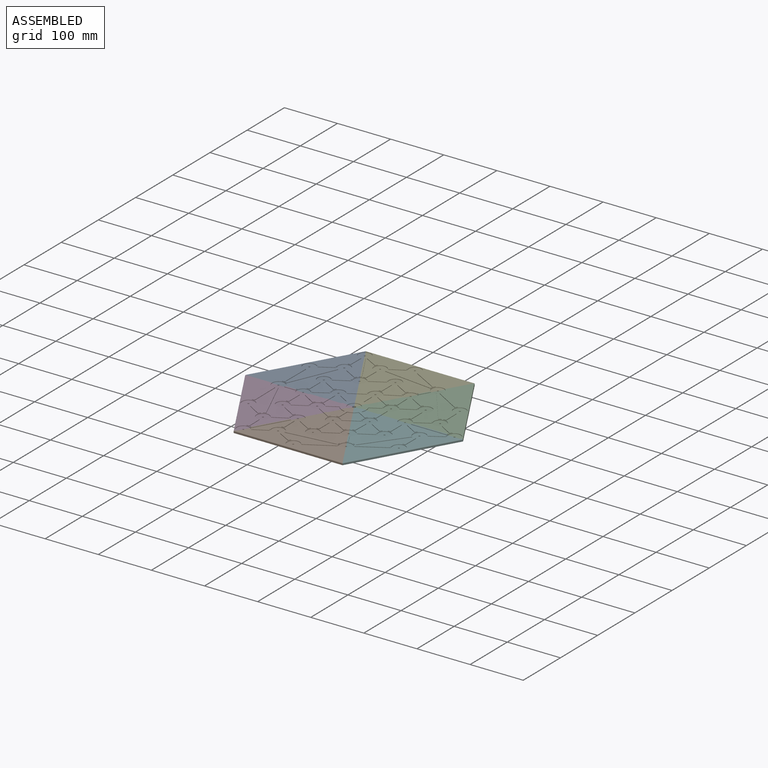
[diagram: assembled view]
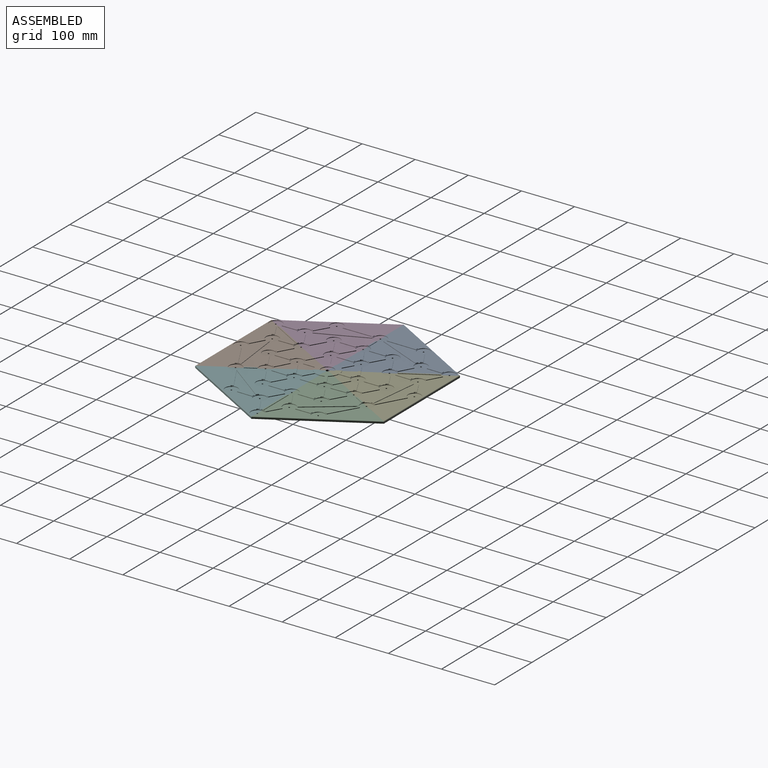
[diagram: assembled view, second angle]
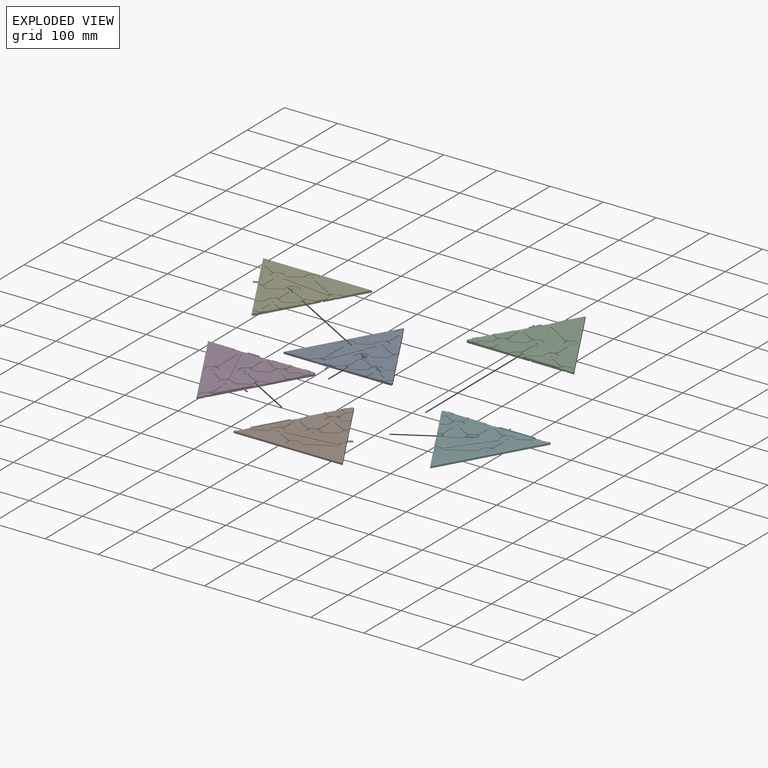
[diagram: exploded view]
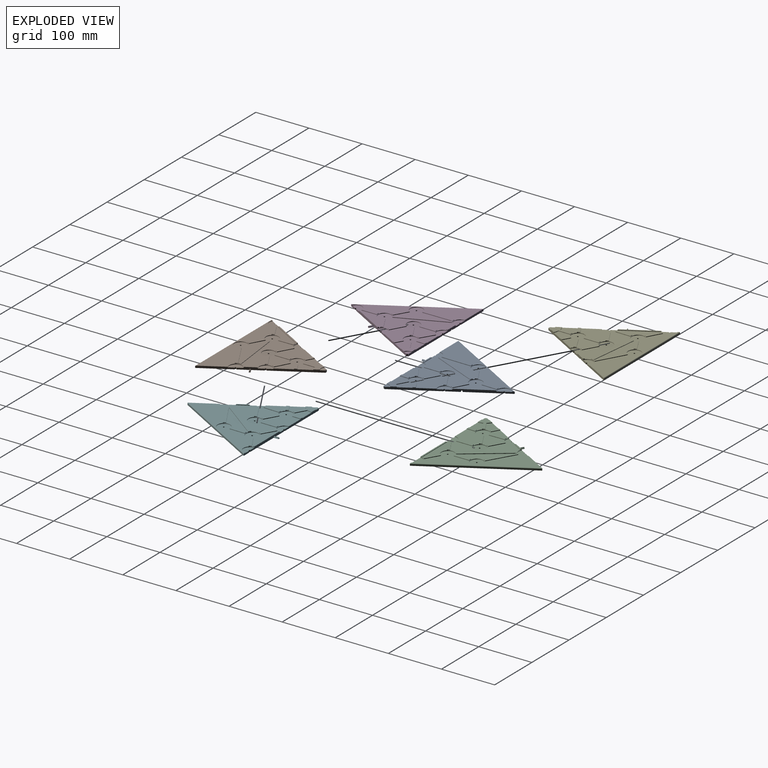
[diagram: exploded view, second angle]
ASSEMBLY  parts=6 mates=5
PART A: 110 faces, bbox 205x174.9x4.8 mm
  f0: plane 77.87x44.96mm, normal (-0.87,0.5,0), area 386.8mm2, adj f6,f8,f43,f45,f46,f80,f81,f82
  f1: plane 79.17x45.71mm, normal (0.87,0.5,0), area 361mm2, adj f6,f8,f13,f15,f16,f21,f22,f76
  f2: plane 79.17x45.71mm, normal (-0.87,0.5,0), area 361mm2, adj f6,f8,f9,f11,f12,f17,f22,f80
  f3: plane 52.94x30.56mm, normal (0.87,0.5,0), area 228.7mm2, adj f6,f7,f8,f78,f79,f98,f103
  f4: plane 37.64x21.73mm, normal (0.87,0.5,0), area 164.8mm2, adj f6,f8,f62,f64,f65,f76,f77,f78
  f5: plane 12.7x7.33mm, normal (-0.87,0.5,0), area 47.5mm2, adj f6,f7,f8,f82,f83,f99,f103
  f6: plane 203.85x157.05mm, normal (0,0,1), area 12781.2mm2, adj f0,f1,f2,f3,f4,f5,f9,f10
  f7: plane 205x2.9mm, normal (0,-1,0), area 594.5mm2, adj f3,f5,f8,f103
  f8: plane 205x174.94mm, normal (0,0,-1), area 18143.7mm2, adj f0,f1,f2,f3,f4,f5,f7,f92
  f9: plane 13.68x7.9mm, normal (-0.5,-0.87,0), area 14.2mm2, adj f2,f6,f10,f12
  f10: cylinder r=13mm len=4.33mm, axis (0,0,-1), area 4.5mm2, adj f6,f9,f11,f12
  f11: plane 13.68x7.9mm, normal (0.5,0.87,0), area 14.2mm2, adj f2,f6,f10,f12
  f12: plane 16.18x12.23mm, normal (0,0,1), area 78.2mm2, adj f2,f9,f10,f11
  f13: plane 13.68x7.9mm, normal (-0.5,0.87,0), area 14.2mm2, adj f1,f6,f14,f16
  f14: cylinder r=13mm len=4.33mm, axis (0,0,-1), area 4.5mm2, adj f6,f13,f15,f16
  f15: plane 13.68x7.9mm, normal (0.5,-0.87,0), area 14.2mm2, adj f1,f6,f14,f16
  f16: plane 16.18x12.23mm, normal (0,0,1), area 78.2mm2, adj f1,f13,f14,f15
  f17: cylinder r=22.5mm len=8.75mm, axis (0,0,-1), area 8.3mm2, adj f2,f6,f18,f22
  f18: plane 21.99x0.9mm, normal (-1,0,0), area 19.8mm2, adj f6,f17,f19,f22
  f19: cylinder r=13mm len=5mm, axis (0,0,-1), area 4.5mm2, adj f6,f18,f20,f22
  f20: plane 21.99x0.9mm, normal (1,0,0), area 19.8mm2, adj f6,f19,f21,f22
  f21: cylinder r=22.5mm len=8.75mm, axis (0,0,-1), area 8.3mm2, adj f1,f6,f20,f22
  f22: plane 33.96x22.5mm, normal (0,0,1), area 298.4mm2, adj f1,f2,f17,f18,f19,f20,f21,f100
  f23: cylinder r=13mm len=5mm, axis (0,0,-1), area 4.5mm2, adj f6,f24,f26,f27
  f24: plane 28.13x0.9mm, normal (-1,0,0), area 25.3mm2, adj f6,f23,f25,f27
  f25: cylinder r=13mm len=5mm, axis (0,0,-1), area 4.5mm2, adj f6,f24,f26,f27
  f26: plane 28.13x0.9mm, normal (1,0,0), area 25.3mm2, adj f6,f23,f25,f27
  f27: plane 28.13x5mm, normal (0,0,1), area 139mm2, adj f23,f24,f25,f26
  f28: plane 25.86x14.93mm, normal (0.5,0.87,0), area 26.9mm2, adj f6,f29,f31,f32
  f29: cylinder r=13mm len=4.33mm, axis (0,0,-1), area 4.5mm2, adj f6,f28,f30,f32
  f30: plane 25.86x14.93mm, normal (-0.5,-0.87,0), area 26.9mm2, adj f6,f29,f31,f32
  f31: cylinder r=13mm len=4.33mm, axis (0,0,-1), area 4.5mm2, adj f6,f28,f30,f32
  f32: plane 28.36x19.26mm, normal (0,0,1), area 147.7mm2, adj f28,f29,f30,f31
  f33: cylinder r=13mm len=4.33mm, axis (0,0,-1), area 4.5mm2, adj f6,f34,f36,f37
  f34: plane 25.86x14.93mm, normal (0.5,-0.87,0), area 26.9mm2, adj f6,f33,f35,f37
  f35: cylinder r=13mm len=4.33mm, axis (0,0,-1), area 4.5mm2, adj f6,f34,f36,f37
  f36: plane 25.86x14.93mm, normal (-0.5,0.87,0), area 26.9mm2, adj f6,f33,f35,f37
  f37: plane 28.36x19.26mm, normal (0,0,1), area 147.7mm2, adj f33,f34,f35,f36
  f38: cylinder r=13mm len=5mm, axis (0,0,-1), area 4.5mm2, adj f6,f39,f41,f42
  f39: plane 28.57x0.9mm, normal (-1,-0.01,0), area 25.7mm2, adj f6,f38,f40,f42
  f40: cylinder r=13mm len=5mm, axis (0,0,-1), area 4.5mm2, adj f6,f39,f41,f42
  f41: plane 28.57x0.9mm, normal (1,0.01,0), area 25.7mm2, adj f6,f38,f40,f42
  f42: plane 28.64x5.4mm, normal (0,0,1), area 141.2mm2, adj f38,f39,f40,f41
  f43: cylinder r=13mm len=2.04mm, axis (0,0,-1), area 2.3mm2, adj f0,f6,f44,f46
  f44: plane 58.37x33.7mm, normal (0.87,-0.5,0), area 60.7mm2, adj f6,f43,f45,f46
  f45: cylinder r=13mm len=2.29mm, axis (0,0,-1), area 2.3mm2, adj f0,f6,f44,f46
  f46: plane 59.41x35.75mm, normal (0,0,1), area 167.7mm2, adj f0,f43,f44,f45
  f47: plane 24.94x13.94mm, normal (-0.49,0.87,0), area 25.7mm2, adj f6,f48,f50,f51
  f48: cylinder r=13mm len=4.36mm, axis (0,0,-1), area 4.5mm2, adj f6,f47,f49,f51
  f49: plane 24.94x13.94mm, normal (0.49,-0.87,0), area 25.7mm2, adj f6,f48,f50,f51
  f50: cylinder r=13mm len=4.36mm, axis (0,0,-1), area 4.5mm2, adj f6,f47,f49,f51
  f51: plane 27.38x18.3mm, normal (0,0,1), area 141.2mm2, adj f47,f48,f49,f50
  f52: cylinder r=13mm len=4.36mm, axis (0,0,-1), area 4.5mm2, adj f6,f53,f55,f56
  f53: plane 24.94x13.94mm, normal (-0.49,-0.87,0), area 25.7mm2, adj f6,f52,f54,f56
  f54: cylinder r=13mm len=4.36mm, axis (0,0,-1), area 4.5mm2, adj f6,f53,f55,f56
  f55: plane 24.94x13.94mm, normal (0.49,0.87,0), area 25.7mm2, adj f6,f52,f54,f56
  f56: plane 27.38x18.3mm, normal (0,0,1), area 141.2mm2, adj f52,f53,f54,f55
  f57: cylinder r=13mm len=4.35mm, axis (0,0,-1), area 4.5mm2, adj f6,f58,f60,f61
  f58: plane 48.98x27.68mm, normal (-0.49,0.87,0), area 50.6mm2, adj f6,f57,f59,f61
  f59: cylinder r=13mm len=4.35mm, axis (0,0,-1), area 4.5mm2, adj f6,f58,f60,f61
  f60: plane 48.98x27.68mm, normal (0.49,-0.87,0), area 50.6mm2, adj f6,f57,f59,f61
  f61: plane 51.44x32.03mm, normal (0,0,1), area 279.7mm2, adj f57,f58,f59,f60
  f62: cylinder r=13mm len=2.29mm, axis (0,0,-1), area 2.3mm2, adj f4,f6,f63,f65
  f63: plane 18.14x10.47mm, normal (-0.87,-0.5,0), area 18.8mm2, adj f6,f62,f64,f65
  f64: cylinder r=13mm len=2.04mm, axis (0,0,-1), area 2.3mm2, adj f4,f6,f63,f65
  f65: plane 19.18x12.52mm, normal (0,0,1), area 51.5mm2, adj f4,f62,f63,f64
  f66: plane 93.05x10.88mm, normal (-0.12,0.99,0), area 84.3mm2, adj f6,f67,f69,f70
  f67: cylinder r=13mm len=4.97mm, axis (0,0,-1), area 4.5mm2, adj f6,f66,f68,f70
  f68: plane 93.05x10.88mm, normal (0.12,-0.99,0), area 84.3mm2, adj f6,f67,f69,f70
  f69: cylinder r=13mm len=4.97mm, axis (0,0,-1), area 4.5mm2, adj f6,f66,f68,f70
  f70: plane 93.64x15.85mm, normal (0,0,1), area 466.8mm2, adj f66,f67,f68,f69
  f71: plane 25.52x13.81mm, normal (0.48,0.88,0), area 26.1mm2, adj f6,f72,f74,f75
  f72: cylinder r=13mm len=4.4mm, axis (0,0,-1), area 4.5mm2, adj f6,f71,f73,f75
  f73: plane 25.52x13.81mm, normal (-0.48,-0.88,0), area 26.1mm2, adj f6,f72,f74,f75
  f74: cylinder r=13mm len=4.4mm, axis (0,0,-1), area 4.5mm2, adj f6,f71,f73,f75
  f75: plane 27.9x18.21mm, normal (0,0,1), area 143.5mm2, adj f71,f72,f73,f74
  f76: cylinder r=12mm len=22.39mm, axis (0,0,1), area 33.9mm2, adj f1,f4,f6,f77
  f77: plane 22.39x18mm, normal (0,0,1), area 222.7mm2, adj f1,f4,f76,f97
  f78: cylinder r=12mm len=22.39mm, axis (0,0,1), area 33.9mm2, adj f3,f4,f6,f79
  f79: plane 22.39x18mm, normal (0,0,1), area 222.7mm2, adj f3,f4,f78,f98
  f80: cylinder r=12mm len=22.39mm, axis (0,0,1), area 33.9mm2, adj f0,f2,f6,f81
  f81: plane 22.39x18mm, normal (0,0,1), area 222.7mm2, adj f0,f2,f80,f96
  f82: cylinder r=12mm len=22.39mm, axis (0,0,1), area 33.9mm2, adj f0,f5,f6,f83
  f83: plane 22.39x18mm, normal (0,0,1), area 222.7mm2, adj f0,f5,f82,f99
  f84: cylinder r=12mm len=24mm, axis (0,0,1), area 67.9mm2, adj f6,f85
  f85: plane 24x24mm, normal (0,0,1), area 445.3mm2, adj f84,f95
  f86: cylinder r=12mm len=24mm, axis (0,0,1), area 67.9mm2, adj f6,f87
  f87: plane 24x24mm, normal (0,0,1), area 445.3mm2, adj f86,f94
  f88: cylinder r=12mm len=24mm, axis (0,0,1), area 67.9mm2, adj f6,f89
  f89: plane 24x24mm, normal (0,0,1), area 445.3mm2, adj f88,f93
  f90: cylinder r=12mm len=24mm, axis (0,0,1), area 67.9mm2, adj f6,f91
  f91: plane 24x24mm, normal (0,0,1), area 445.3mm2, adj f90,f92
  f92: cylinder r=1.5mm len=3mm, axis (0,0,1), area 28.3mm2, adj f8,f91
  f93: cylinder r=1.5mm len=3mm, axis (0,0,1), area 28.3mm2, adj f8,f89
  f94: cylinder r=1.5mm len=3mm, axis (0,0,1), area 28.3mm2, adj f8,f87
  f95: cylinder r=1.5mm len=3mm, axis (0,0,1), area 28.3mm2, adj f8,f85
  f96: cylinder r=1.5mm len=3mm, axis (0,0,1), area 14.1mm2, adj f0,f2,f8,f81
  f97: cylinder r=1.5mm len=3mm, axis (0,0,1), area 14.1mm2, adj f1,f4,f8,f77
  f98: cylinder r=1.5mm len=3mm, axis (0,0,1), area 14.1mm2, adj f3,f4,f8,f79
  f99: cylinder r=1.5mm len=3mm, axis (0,0,1), area 14.1mm2, adj f0,f5,f8,f83
  f100: cylinder r=12mm len=12mm, axis (0,0,1), area 11.3mm2, adj f1,f2,f22,f101
  f101: plane 12x9.4mm, normal (0,0,1), area 70.7mm2, adj f1,f2,f100,f102
  f102: cylinder r=3mm len=3.9mm, axis (0,0,1), area 12.3mm2, adj f1,f2,f8,f101
  f103: cylinder r=1mm len=205mm, axis (-1,0,0), area 321.4mm2, adj f3,f5,f6,f7
  f104: plane 8.57x5.85mm, normal (-0.43,0.75,0.5), area 28.1mm2, adj f4,f8,f105,f106
  f105: plane 8.57x5.85mm, normal (0.43,-0.75,0.5), area 28.1mm2, adj f4,f8,f104,f106
  f106: plane 2.7x2.7mm, normal (0.87,0.5,0), area 4.2mm2, adj f8,f104,f105
  f107: plane 9.53x6.5mm, normal (0.43,0.75,-0.5), area 34.6mm2, adj f0,f8,f108,f109
  f108: plane 9.53x6.5mm, normal (-0.43,-0.75,-0.5), area 34.6mm2, adj f0,f8,f107,f109
  f109: plane 3x3mm, normal (-0.87,0.5,0), area 5.2mm2, adj f8,f107,f108
PART B: same geometry as A
PART C: same geometry as A
PART D: 110 faces, bbox 205x174.9x4.8 mm
  f0: plane 77.87x44.96mm, normal (0.87,0.5,0), area 387.8mm2, adj f6,f8,f43,f45,f46,f80,f81,f82
  f1: plane 79.17x45.71mm, normal (-0.87,0.5,0), area 361mm2, adj f6,f8,f13,f15,f16,f21,f22,f76
  f2: plane 79.17x45.71mm, normal (0.87,0.5,0), area 361mm2, adj f6,f8,f9,f11,f12,f17,f22,f80
  f3: plane 52.94x30.56mm, normal (-0.87,0.5,0), area 228.7mm2, adj f6,f7,f8,f78,f79,f98,f103
  f4: plane 37.64x21.73mm, normal (-0.87,0.5,0), area 163.8mm2, adj f6,f8,f62,f64,f65,f76,f77,f78
  f5: plane 12.7x7.33mm, normal (0.87,0.5,0), area 47.5mm2, adj f6,f7,f8,f82,f83,f99,f103
  f6: plane 203.85x157.05mm, normal (0,0,1), area 12781.2mm2, adj f0,f1,f2,f3,f4,f5,f9,f10
  f7: plane 205x2.9mm, normal (0,-1,0), area 594.5mm2, adj f3,f5,f8,f103
  f8: plane 205x174.94mm, normal (0,0,-1), area 18143.7mm2, adj f0,f1,f2,f3,f4,f5,f7,f92
  f9: plane 13.68x7.9mm, normal (0.5,-0.87,0), area 14.2mm2, adj f2,f6,f10,f12
  f10: cylinder r=13mm len=4.33mm, axis (0,0,-1), area 4.5mm2, adj f6,f9,f11,f12
  f11: plane 13.68x7.9mm, normal (-0.5,0.87,0), area 14.2mm2, adj f2,f6,f10,f12
  f12: plane 16.18x12.23mm, normal (0,0,1), area 78.2mm2, adj f2,f9,f10,f11
  f13: plane 13.68x7.9mm, normal (0.5,0.87,0), area 14.2mm2, adj f1,f6,f14,f16
  f14: cylinder r=13mm len=4.33mm, axis (0,0,-1), area 4.5mm2, adj f6,f13,f15,f16
  f15: plane 13.68x7.9mm, normal (-0.5,-0.87,0), area 14.2mm2, adj f1,f6,f14,f16
  f16: plane 16.18x12.23mm, normal (0,0,1), area 78.2mm2, adj f1,f13,f14,f15
  f17: cylinder r=22.5mm len=8.75mm, axis (0,0,-1), area 8.3mm2, adj f2,f6,f18,f22
  f18: plane 21.99x0.9mm, normal (1,0,0), area 19.8mm2, adj f6,f17,f19,f22
  f19: cylinder r=13mm len=5mm, axis (0,0,-1), area 4.5mm2, adj f6,f18,f20,f22
  f20: plane 21.99x0.9mm, normal (-1,0,0), area 19.8mm2, adj f6,f19,f21,f22
  f21: cylinder r=22.5mm len=8.75mm, axis (0,0,-1), area 8.3mm2, adj f1,f6,f20,f22
  f22: plane 33.96x22.5mm, normal (0,0,1), area 298.4mm2, adj f1,f2,f17,f18,f19,f20,f21,f100
  f23: cylinder r=13mm len=5mm, axis (0,0,-1), area 4.5mm2, adj f6,f24,f26,f27
  f24: plane 28.13x0.9mm, normal (1,0,0), area 25.3mm2, adj f6,f23,f25,f27
  f25: cylinder r=13mm len=5mm, axis (0,0,-1), area 4.5mm2, adj f6,f24,f26,f27
  f26: plane 28.13x0.9mm, normal (-1,0,0), area 25.3mm2, adj f6,f23,f25,f27
  f27: plane 28.13x5mm, normal (0,0,1), area 139mm2, adj f23,f24,f25,f26
  f28: plane 25.86x14.93mm, normal (-0.5,0.87,0), area 26.9mm2, adj f6,f29,f31,f32
  f29: cylinder r=13mm len=4.33mm, axis (0,0,-1), area 4.5mm2, adj f6,f28,f30,f32
  f30: plane 25.86x14.93mm, normal (0.5,-0.87,0), area 26.9mm2, adj f6,f29,f31,f32
  f31: cylinder r=13mm len=4.33mm, axis (0,0,-1), area 4.5mm2, adj f6,f28,f30,f32
  f32: plane 28.36x19.26mm, normal (0,0,1), area 147.7mm2, adj f28,f29,f30,f31
  f33: cylinder r=13mm len=4.33mm, axis (0,0,-1), area 4.5mm2, adj f6,f34,f36,f37
  f34: plane 25.86x14.93mm, normal (-0.5,-0.87,0), area 26.9mm2, adj f6,f33,f35,f37
  f35: cylinder r=13mm len=4.33mm, axis (0,0,-1), area 4.5mm2, adj f6,f34,f36,f37
  f36: plane 25.86x14.93mm, normal (0.5,0.87,0), area 26.9mm2, adj f6,f33,f35,f37
  f37: plane 28.36x19.26mm, normal (0,0,1), area 147.7mm2, adj f33,f34,f35,f36
  f38: cylinder r=13mm len=5mm, axis (0,0,-1), area 4.5mm2, adj f6,f39,f41,f42
  f39: plane 28.57x0.9mm, normal (1,-0.01,0), area 25.7mm2, adj f6,f38,f40,f42
  f40: cylinder r=13mm len=5mm, axis (0,0,-1), area 4.5mm2, adj f6,f39,f41,f42
  f41: plane 28.57x0.9mm, normal (-1,0.01,0), area 25.7mm2, adj f6,f38,f40,f42
  f42: plane 28.64x5.4mm, normal (0,0,1), area 141.2mm2, adj f38,f39,f40,f41
  f43: cylinder r=13mm len=2.04mm, axis (0,0,-1), area 2.3mm2, adj f0,f6,f44,f46
  f44: plane 58.37x33.7mm, normal (-0.87,-0.5,0), area 60.7mm2, adj f6,f43,f45,f46
  f45: cylinder r=13mm len=2.29mm, axis (0,0,-1), area 2.3mm2, adj f0,f6,f44,f46
  f46: plane 59.41x35.75mm, normal (0,0,1), area 167.7mm2, adj f0,f43,f44,f45
  f47: plane 24.94x13.94mm, normal (0.49,0.87,0), area 25.7mm2, adj f6,f48,f50,f51
  f48: cylinder r=13mm len=4.36mm, axis (0,0,-1), area 4.5mm2, adj f6,f47,f49,f51
  f49: plane 24.94x13.94mm, normal (-0.49,-0.87,0), area 25.7mm2, adj f6,f48,f50,f51
  f50: cylinder r=13mm len=4.36mm, axis (0,0,-1), area 4.5mm2, adj f6,f47,f49,f51
  f51: plane 27.38x18.3mm, normal (0,0,1), area 141.2mm2, adj f47,f48,f49,f50
  f52: cylinder r=13mm len=4.36mm, axis (0,0,-1), area 4.5mm2, adj f6,f53,f55,f56
  f53: plane 24.94x13.94mm, normal (0.49,-0.87,0), area 25.7mm2, adj f6,f52,f54,f56
  f54: cylinder r=13mm len=4.36mm, axis (0,0,-1), area 4.5mm2, adj f6,f53,f55,f56
  f55: plane 24.94x13.94mm, normal (-0.49,0.87,0), area 25.7mm2, adj f6,f52,f54,f56
  f56: plane 27.38x18.3mm, normal (0,0,1), area 141.2mm2, adj f52,f53,f54,f55
  f57: cylinder r=13mm len=4.35mm, axis (0,0,-1), area 4.5mm2, adj f6,f58,f60,f61
  f58: plane 48.98x27.68mm, normal (0.49,0.87,0), area 50.6mm2, adj f6,f57,f59,f61
  f59: cylinder r=13mm len=4.35mm, axis (0,0,-1), area 4.5mm2, adj f6,f58,f60,f61
  f60: plane 48.98x27.68mm, normal (-0.49,-0.87,0), area 50.6mm2, adj f6,f57,f59,f61
  f61: plane 51.44x32.03mm, normal (0,0,1), area 279.7mm2, adj f57,f58,f59,f60
  f62: cylinder r=13mm len=2.29mm, axis (0,0,-1), area 2.3mm2, adj f4,f6,f63,f65
  f63: plane 18.14x10.47mm, normal (0.87,-0.5,0), area 18.8mm2, adj f6,f62,f64,f65
  f64: cylinder r=13mm len=2.04mm, axis (0,0,-1), area 2.3mm2, adj f4,f6,f63,f65
  f65: plane 19.18x12.52mm, normal (0,0,1), area 51.5mm2, adj f4,f62,f63,f64
  f66: plane 93.05x10.88mm, normal (0.12,0.99,0), area 84.3mm2, adj f6,f67,f69,f70
  f67: cylinder r=13mm len=4.97mm, axis (0,0,-1), area 4.5mm2, adj f6,f66,f68,f70
  f68: plane 93.05x10.88mm, normal (-0.12,-0.99,0), area 84.3mm2, adj f6,f67,f69,f70
  f69: cylinder r=13mm len=4.97mm, axis (0,0,-1), area 4.5mm2, adj f6,f66,f68,f70
  f70: plane 93.64x15.85mm, normal (0,0,1), area 466.8mm2, adj f66,f67,f68,f69
  f71: plane 25.52x13.81mm, normal (-0.48,0.88,0), area 26.1mm2, adj f6,f72,f74,f75
  f72: cylinder r=13mm len=4.4mm, axis (0,0,-1), area 4.5mm2, adj f6,f71,f73,f75
  f73: plane 25.52x13.81mm, normal (0.48,-0.88,0), area 26.1mm2, adj f6,f72,f74,f75
  f74: cylinder r=13mm len=4.4mm, axis (0,0,-1), area 4.5mm2, adj f6,f71,f73,f75
  f75: plane 27.9x18.21mm, normal (0,0,1), area 143.5mm2, adj f71,f72,f73,f74
  f76: cylinder r=12mm len=22.39mm, axis (0,0,1), area 33.9mm2, adj f1,f4,f6,f77
  f77: plane 22.39x18mm, normal (0,0,1), area 222.7mm2, adj f1,f4,f76,f97
  f78: cylinder r=12mm len=22.39mm, axis (0,0,1), area 33.9mm2, adj f3,f4,f6,f79
  f79: plane 22.39x18mm, normal (0,0,1), area 222.7mm2, adj f3,f4,f78,f98
  f80: cylinder r=12mm len=22.39mm, axis (0,0,1), area 33.9mm2, adj f0,f2,f6,f81
  f81: plane 22.39x18mm, normal (0,0,1), area 222.7mm2, adj f0,f2,f80,f96
  f82: cylinder r=12mm len=22.39mm, axis (0,0,1), area 33.9mm2, adj f0,f5,f6,f83
  f83: plane 22.39x18mm, normal (0,0,1), area 222.7mm2, adj f0,f5,f82,f99
  f84: cylinder r=12mm len=24mm, axis (0,0,1), area 67.9mm2, adj f6,f85
  f85: plane 24x24mm, normal (0,0,1), area 445.3mm2, adj f84,f95
  f86: cylinder r=12mm len=24mm, axis (0,0,1), area 67.9mm2, adj f6,f87
  f87: plane 24x24mm, normal (0,0,1), area 445.3mm2, adj f86,f94
  f88: cylinder r=12mm len=24mm, axis (0,0,1), area 67.9mm2, adj f6,f89
  f89: plane 24x24mm, normal (0,0,1), area 445.3mm2, adj f88,f93
  f90: cylinder r=12mm len=24mm, axis (0,0,1), area 67.9mm2, adj f6,f91
  f91: plane 24x24mm, normal (0,0,1), area 445.3mm2, adj f90,f92
  f92: cylinder r=1.5mm len=3mm, axis (0,0,1), area 28.3mm2, adj f8,f91
  f93: cylinder r=1.5mm len=3mm, axis (0,0,1), area 28.3mm2, adj f8,f89
  f94: cylinder r=1.5mm len=3mm, axis (0,0,1), area 28.3mm2, adj f8,f87
  f95: cylinder r=1.5mm len=3mm, axis (0,0,1), area 28.3mm2, adj f8,f85
  f96: cylinder r=1.5mm len=3mm, axis (0,0,1), area 14.1mm2, adj f0,f2,f8,f81
  f97: cylinder r=1.5mm len=3mm, axis (0,0,1), area 14.1mm2, adj f1,f4,f8,f77
  f98: cylinder r=1.5mm len=3mm, axis (0,0,1), area 14.1mm2, adj f3,f4,f8,f79
  f99: cylinder r=1.5mm len=3mm, axis (0,0,1), area 14.1mm2, adj f0,f5,f8,f83
  f100: cylinder r=12mm len=12mm, axis (0,0,1), area 11.3mm2, adj f1,f2,f22,f101
  f101: plane 12x9.4mm, normal (0,0,1), area 70.7mm2, adj f1,f2,f100,f102
  f102: cylinder r=3mm len=3.9mm, axis (0,0,1), area 12.3mm2, adj f1,f2,f8,f101
  f103: cylinder r=1mm len=205mm, axis (1,0,0), area 321.4mm2, adj f3,f5,f6,f7
  f104: plane 8.57x5.85mm, normal (0.43,-0.75,0.5), area 28.1mm2, adj f0,f8,f105,f106
  f105: plane 8.57x5.85mm, normal (-0.43,0.75,0.5), area 28.1mm2, adj f0,f8,f104,f106
  f106: plane 2.7x2.7mm, normal (0.87,0.5,0), area 4.2mm2, adj f8,f104,f105
  f107: plane 9.53x6.5mm, normal (-0.43,-0.75,-0.5), area 34.6mm2, adj f4,f8,f108,f109
  f108: plane 9.53x6.5mm, normal (0.43,0.75,-0.5), area 34.6mm2, adj f4,f8,f107,f109
  f109: plane 3x3mm, normal (-0.87,0.5,0), area 5.2mm2, adj f8,f107,f108
PART E: same geometry as D
PART F: same geometry as D
PLACE A rot(axis=(0,0,-1),120deg) t=(-270.62,-54.01,0.05)mm
PLACE B t=(-270.59,-53.97,0.05)mm
PLACE C rot(axis=(0,0,1),120deg) t=(-270.64,-53.97,0.05)mm
PLACE D rot(axis=(0,0,-1),60deg) t=(-270.62,-54.01,0.05)mm
PLACE E rot(axis=(0,0,-1),180deg) t=(-270.64,-53.97,0.05)mm
PLACE F rot(axis=(0,0,1),60deg) t=(-270.59,-53.97,0.05)mm
MATE fastened D.f0 <-> B.f0  axis (0.87,-0.5,0) through (-341.91,-177.49,2.31)mm
MATE fastened B.f1 <-> F.f1  axis (0.87,0.5,0) through (-247.17,-94.53,2.05)mm
MATE fastened A.f1 <-> D.f1  axis (0,-1,0) through (-317.45,-54.01,2.06)mm
MATE fastened C.f0 <-> F.f0  axis (0,-1,0) through (-128,-53.97,2.31)mm
MATE fastened E.f1 <-> C.f1  axis (0.87,-0.5,0) through (-247.22,-13.4,2.05)mm
